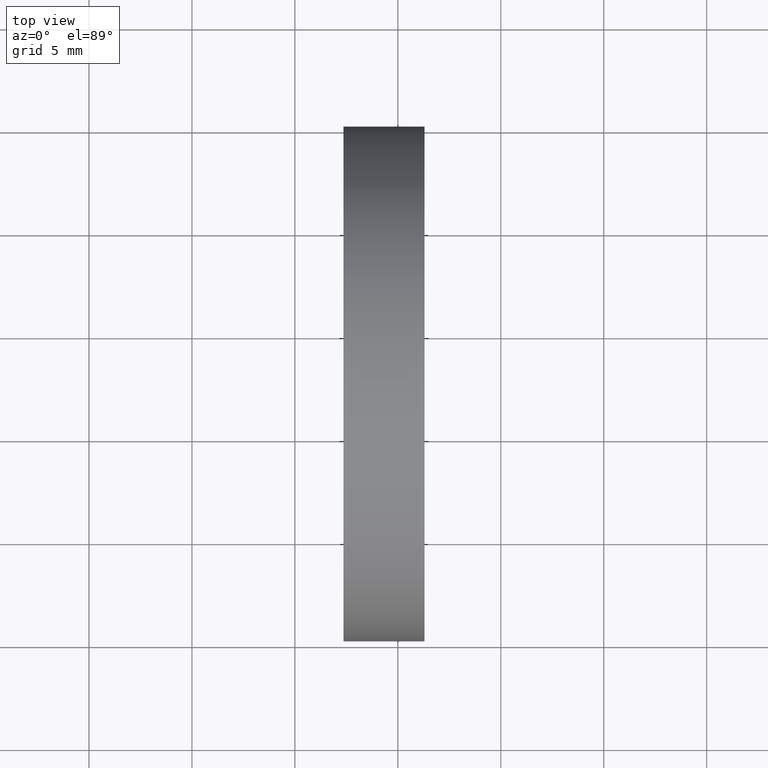
[diagram: clean part render]
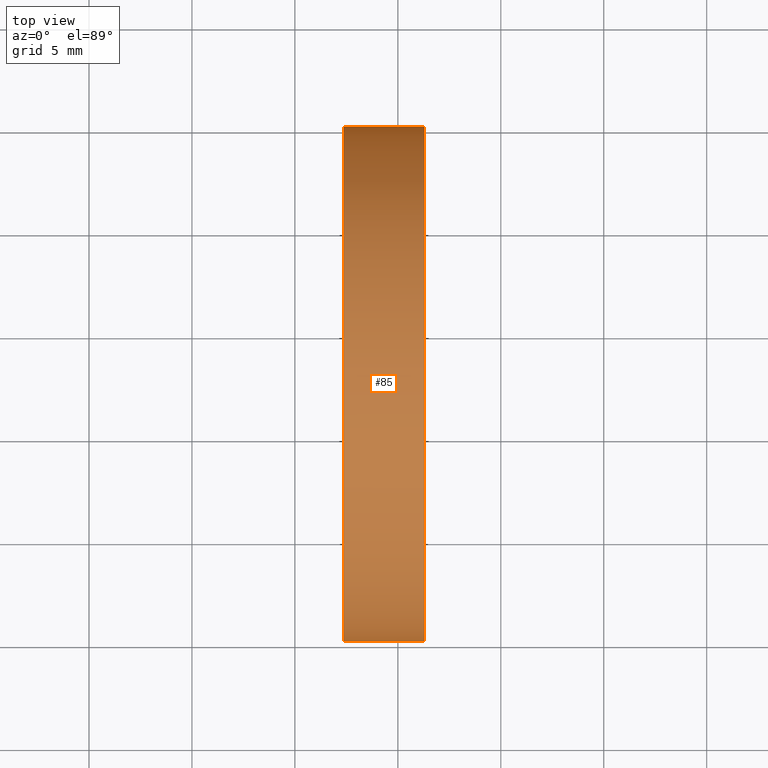
[diagram: same view with one face highlighted and labeled with its STEP entity id]
A machine part, top view. The second image highlights one B-rep face of the part: STEP entity #85.
In plain terms, the highlighted cylindrical surface (partial cylindrical patch) has radius 12.5 mm, axis along (-1, 0, -0).
Its self-contained STEP definition (entity closure, byte-faithful):
#4 = VECTOR ( 'NONE', #89, 1000.000000000000000 ) ;
#10 = LINE ( 'NONE', #77, #4 ) ;
#12 = AXIS2_PLACEMENT_3D ( 'NONE', #143, #164, #106 ) ;
#16 = VERTEX_POINT ( 'NONE', #52 ) ;
#21 = DIRECTION ( 'NONE',  ( -1.000000000000000000, 4.853228644174421400E-016, -0.0000000000000000000 ) ) ;
#27 = EDGE_CURVE ( 'NONE', #133, #165, #10, .T. ) ;
#32 = EDGE_CURVE ( 'NONE', #154, #16, #87, .T. ) ;
#34 = CARTESIAN_POINT ( 'NONE',  ( 57.35819015802111000, 32.57872591329309800, 0.0000000000000000000 ) ) ;
#35 = ORIENTED_EDGE ( 'NONE', *, *, #27, .T. ) ;
#40 = AXIS2_PLACEMENT_3D ( 'NONE', #93, #128, #54 ) ;
#42 = EDGE_CURVE ( 'NONE', #16, #165, #163, .T. ) ;
#51 = FACE_OUTER_BOUND ( 'NONE', #145, .T. ) ;
#52 = CARTESIAN_POINT ( 'NONE',  ( 57.35819015802110200, 20.07872591329309800, 0.0000000000000000000 ) ) ;
#54 = DIRECTION ( 'NONE',  ( -5.551115123125779700E-016, -1.000000000000000000, 0.0000000000000000000 ) ) ;
#59 = ORIENTED_EDGE ( 'NONE', *, *, #69, .T. ) ;
#69 = EDGE_CURVE ( 'NONE', #154, #133, #111, .T. ) ;
#70 = ORIENTED_EDGE ( 'NONE', *, *, #42, .F. ) ;
#75 = CYLINDRICAL_SURFACE ( 'NONE', #12, 12.50000000000000000 ) ;
#77 = CARTESIAN_POINT ( 'NONE',  ( 55.00739462442118800, 45.07872591329309100, 1.530808498934191500E-015 ) ) ;
#80 = CARTESIAN_POINT ( 'NONE',  ( 61.29594135633620800, 45.07872591329310600, 1.530808498934192300E-015 ) ) ;
#85 = ADVANCED_FACE ( 'NONE', ( #51 ), #75, .T. ) ;
#87 = LINE ( 'NONE', #101, #156 ) ;
#89 = DIRECTION ( 'NONE',  ( -1.000000000000000000, 4.853228644174421400E-016, -0.0000000000000000000 ) ) ;
#93 = CARTESIAN_POINT ( 'NONE',  ( 61.29594135633620100, 32.57872591329309800, 0.0000000000000000000 ) ) ;
#101 = CARTESIAN_POINT ( 'NONE',  ( 55.00739462442117400, 20.07872591329309500, 0.0000000000000000000 ) ) ;
#106 = DIRECTION ( 'NONE',  ( -5.551115123125782700E-016, -1.000000000000000000, 0.0000000000000000000 ) ) ;
#111 = CIRCLE ( 'NONE', #40, 12.50000000000000700 ) ;
#119 = CARTESIAN_POINT ( 'NONE',  ( 61.29594135633619300, 20.07872591329308400, 0.0000000000000000000 ) ) ;
#128 = DIRECTION ( 'NONE',  ( -1.000000000000000000, 4.853228644174421400E-016, -0.0000000000000000000 ) ) ;
#131 = AXIS2_PLACEMENT_3D ( 'NONE', #34, #152, #162 ) ;
#133 = VERTEX_POINT ( 'NONE', #80 ) ;
#135 = CARTESIAN_POINT ( 'NONE',  ( 57.35819015802111700, 45.07872591329309100, 1.530808498934191900E-015 ) ) ;
#143 = CARTESIAN_POINT ( 'NONE',  ( 55.00739462442118100, 32.57872591329309800, 0.0000000000000000000 ) ) ;
#145 = EDGE_LOOP ( 'NONE', ( #59, #35, #70, #166 ) ) ;
#152 = DIRECTION ( 'NONE',  ( -1.000000000000000000, 4.853228644174421400E-016, -0.0000000000000000000 ) ) ;
#154 = VERTEX_POINT ( 'NONE', #119 ) ;
#156 = VECTOR ( 'NONE', #21, 1000.000000000000000 ) ;
#162 = DIRECTION ( 'NONE',  ( -5.551115123125784700E-016, -1.000000000000000000, 0.0000000000000000000 ) ) ;
#163 = CIRCLE ( 'NONE', #131, 12.49999999999999600 ) ;
#164 = DIRECTION ( 'NONE',  ( -1.000000000000000000, 4.853228644174421400E-016, -0.0000000000000000000 ) ) ;
#165 = VERTEX_POINT ( 'NONE', #135 ) ;
#166 = ORIENTED_EDGE ( 'NONE', *, *, #32, .F. ) ;